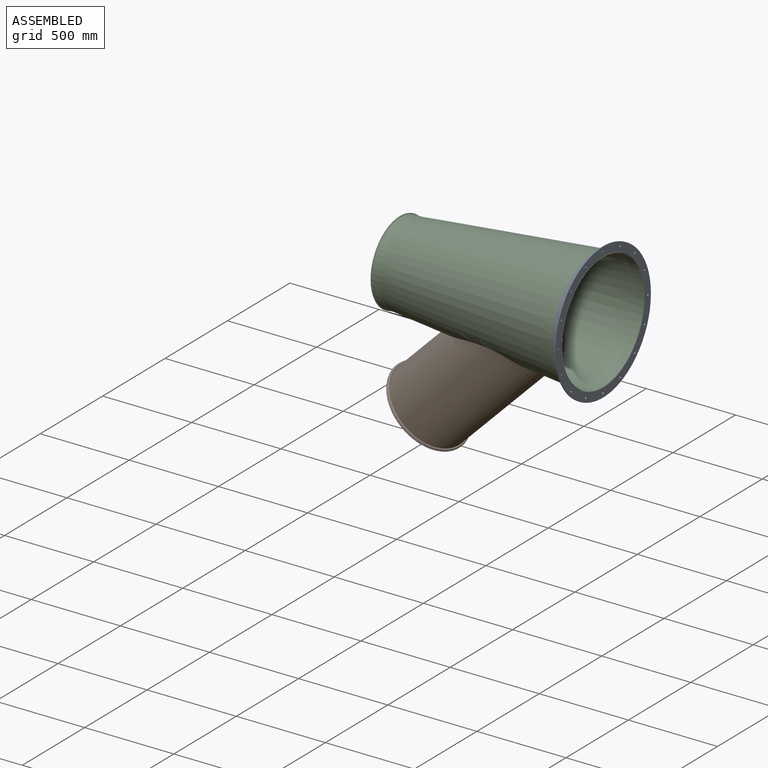
[diagram: assembled view]
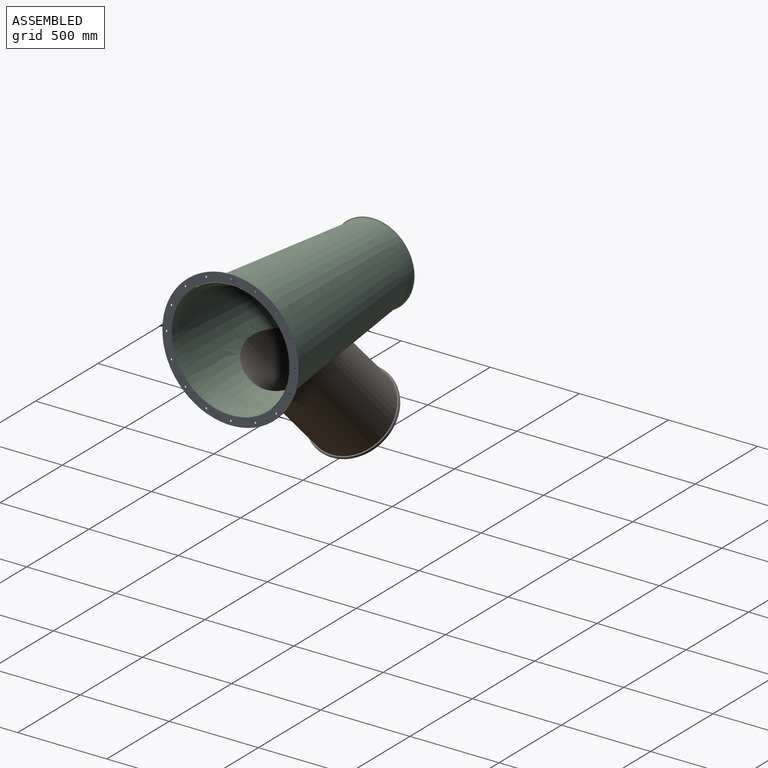
[diagram: assembled view, second angle]
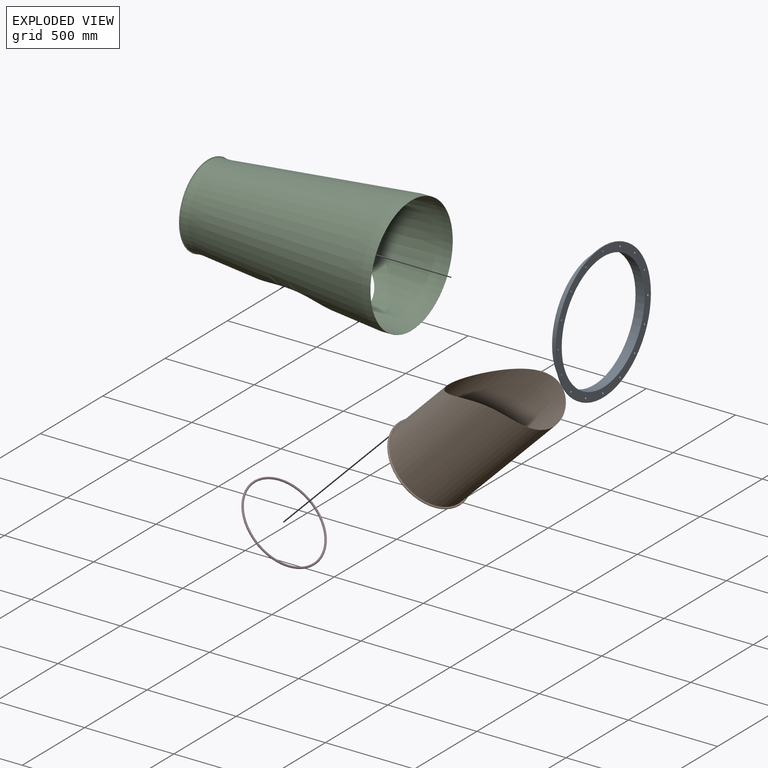
[diagram: exploded view]
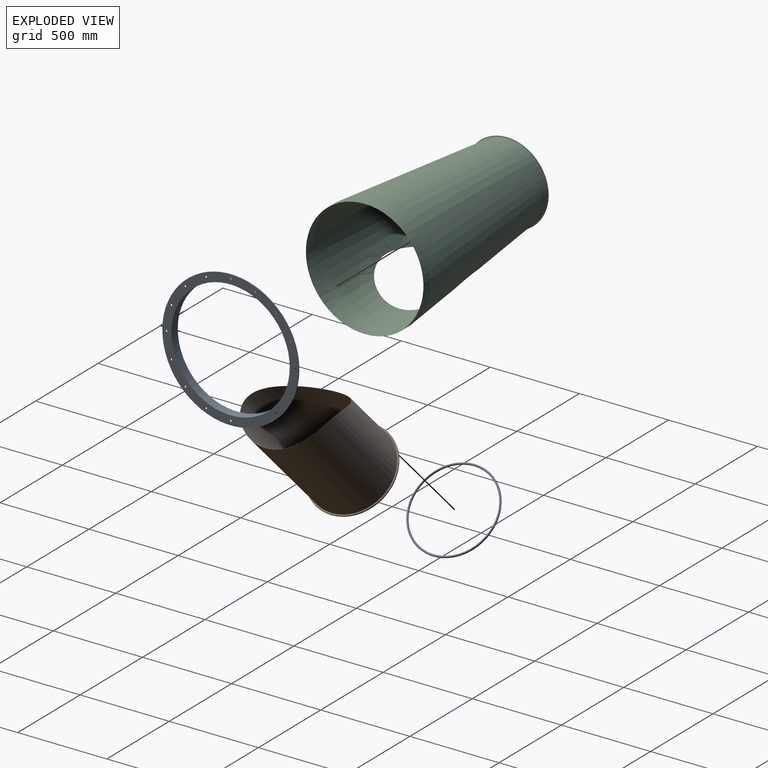
[diagram: exploded view, second angle]
ASSEMBLY  parts=4 mates=2
PART A: 22 faces, bbox 765.3x50.8x765.3 mm
  f0: cylinder r=5.56mm len=11.11mm, axis (0,1,0), area 166.3mm2, adj f17,f18
  f1: cylinder r=5.56mm len=11.11mm, axis (0,1,0), area 166.3mm2, adj f17,f18
  f2: cylinder r=5.56mm len=11.11mm, axis (0,1,0), area 166.3mm2, adj f17,f18
  f3: cylinder r=5.56mm len=11.11mm, axis (0,1,0), area 166.3mm2, adj f17,f18
  f4: cylinder r=5.56mm len=11.11mm, axis (0,1,0), area 166.3mm2, adj f17,f18
  f5: cylinder r=5.56mm len=11.11mm, axis (0,1,0), area 166.3mm2, adj f17,f18
  f6: cylinder r=5.56mm len=11.11mm, axis (0,1,0), area 166.3mm2, adj f17,f18
  f7: cylinder r=5.56mm len=11.11mm, axis (0,1,0), area 166.3mm2, adj f17,f18
  f8: cylinder r=5.56mm len=11.11mm, axis (0,1,0), area 166.3mm2, adj f17,f18
  f9: cylinder r=5.56mm len=11.11mm, axis (0,1,0), area 166.3mm2, adj f17,f18
  f10: cylinder r=5.56mm len=11.11mm, axis (0,1,0), area 166.3mm2, adj f17,f18
  f11: cylinder r=5.56mm len=11.11mm, axis (0,1,0), area 166.3mm2, adj f17,f18
  f12: cylinder r=5.56mm len=11.11mm, axis (0,1,0), area 166.3mm2, adj f17,f18
  f13: cylinder r=5.56mm len=11.11mm, axis (0,1,0), area 166.3mm2, adj f17,f18
  f14: cylinder r=5.56mm len=11.11mm, axis (0,1,0), area 166.3mm2, adj f17,f18
  f15: cylinder r=5.56mm len=11.11mm, axis (0,1,0), area 166.3mm2, adj f17,f18
  f16: cylinder r=382.65mm len=765.3mm, axis (0,1,0), area 11450.3mm2, adj f17,f18
  f17: plane 765.3x765.3mm, normal (0,-1,0), area 102476.2mm2, adj f0,f1,f2,f3,f4,f5,f6,f7
  f18: plane 765.3x765.3mm, normal (0,1,0), area 112477.7mm2, adj f0,f1,f2,f3,f4,f5,f6,f7
  f19: cylinder r=331.85mm len=663.7mm, axis (0,1,0), area 105922.1mm2, adj f18,f21
  f20: cylinder r=336.61mm len=673.23mm, axis (0,1,0), area 97369.5mm2, adj f17,f21
  f21: plane 673.23x673.23mm, normal (0,-1,0), area 10001.5mm2, adj f19,f20
PART B: 6 faces, bbox 881.2x515x881.2 mm
  f0: cylinder r=227.74mm len=858.83mm, axis (-0.71,0,-0.71), area 909190.4mm2, adj f4,f5
  f1: cylinder r=228.6mm len=860.74mm, axis (-0.71,0,-0.71), area 913514.6mm2, adj f2,f5
  f2: torus R=232.82mm, axis (-0.71,0,-0.71), area 36640.3mm2, adj f1,f3
  f3: cylinder r=228.85mm len=457.71mm, axis (-0.71,0,-0.71), area 2498.6mm2, adj f2,f4
  f4: torus R=232.82mm, axis (-0.71,0,-0.71), area 41768.4mm2, adj f0,f3
  f5: cone r=228.63mm half-angle=5.6deg, axis (1,0,0), area 2001.9mm2, adj f0,f1
PART C: 16 faces, bbox 1140.5x714.8x931.3 mm
  f0: cylinder r=330.2mm len=660.4mm, axis (-1,0,0), area 10539.5mm2, adj f4,f15
  f1: cone r=228.63mm half-angle=5.6deg, axis (1,0,0), area 1601883.7mm2, adj f3,f13,f14
  f2: cone r=329.31mm half-angle=5.6deg, axis (1,0,0), area 1596046.7mm2, adj f6,f7,f14
  f3: torus R=323.85mm, axis (-1,0,0), area 1281.2mm2, adj f1,f4
  f4: cylinder r=330.2mm len=660.4mm, axis (-1,0,0), area 94214.5mm2, adj f0,f3
  f5: cylinder r=329.34mm len=658.67mm, axis (-1,0,0), area 104480.1mm2, adj f6,f15
  f6: torus R=322.99mm, axis (-1,0,0), area 1277.9mm2, adj f2,f5
  f7: torus R=234.09mm, axis (-1,0,0), area 883.7mm2, adj f2,f8
  f8: cylinder r=227.74mm len=455.47mm, axis (-1,0,0), area 68613.5mm2, adj f7,f9
  f9: torus R=230.28mm, axis (-1,0,0), area 19536.2mm2, adj f8,f10
  f10: cylinder r=228.85mm len=457.71mm, axis (-1,0,0), area 1750.2mm2, adj f9,f11
  f11: torus R=230.28mm, axis (-1,0,0), area 13896.7mm2, adj f10,f12
  f12: cylinder r=228.6mm len=457.2mm, axis (-1,0,0), area 68873.7mm2, adj f11,f13
  f13: torus R=234.95mm, axis (-1,0,0), area 887.1mm2, adj f1,f12
  f14: cylinder r=228.6mm len=593.54mm, axis (-0.71,0,-0.71), area 1959.3mm2, adj f1,f2
  f15: plane 660.4x660.4mm, normal (1,0,0), area 1789.4mm2, adj f0,f5
PART D: 1 faces, bbox 518.7x518.7x11 mm
  f0: torus R=234.1mm, axis (0,0,-1), area 50830.4mm2
PLACE A rot(axis=(0.58,0.58,-0.58),120deg) t=(8.26,0,0)mm
PLACE B t=(-1134.74,0,-228.6)mm
PLACE C t=(-1134.74,0,-228.6)mm
PLACE D rot(axis=(0,1,0),45deg) t=(-968.95,0,-684.24)mm
MATE fastened A.f19 <-> C.f0  axis (1,0,0) through (8.26,0,0)mm
MATE fastened D.f0 <-> B.f0  axis (0.71,0,0.71) through (-965.06,0,-680.35)mm
